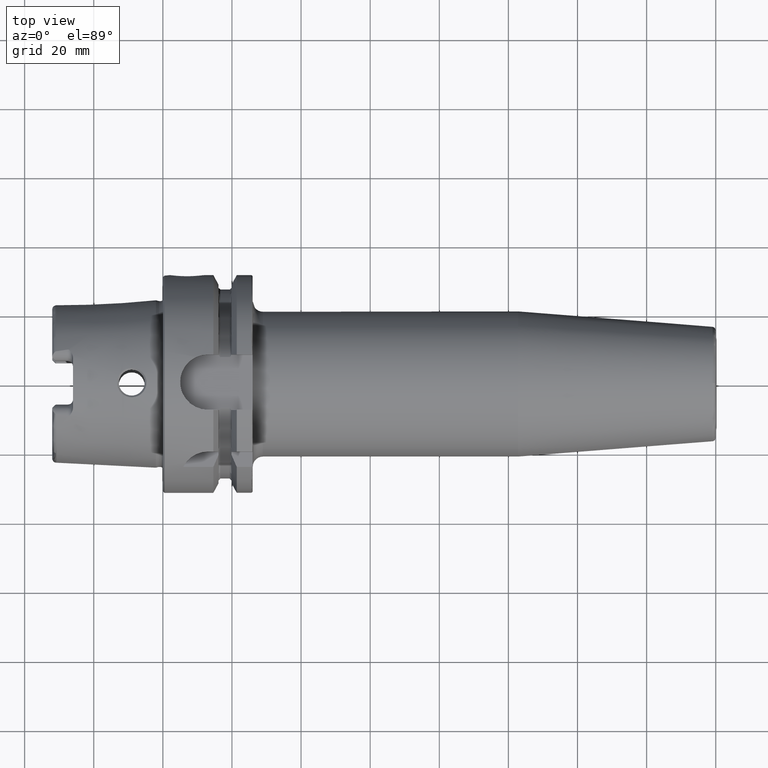
[diagram: clean part render]
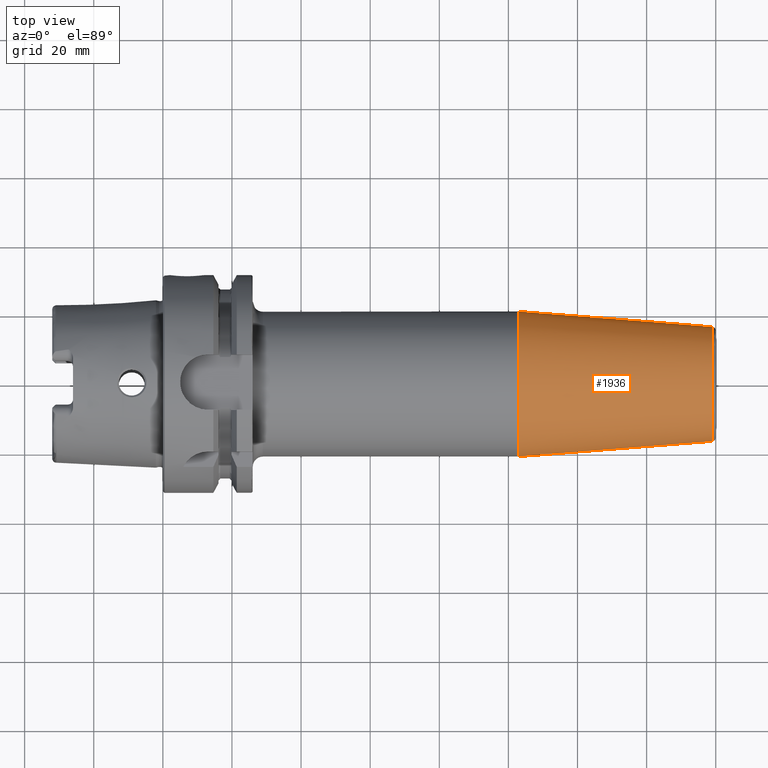
[diagram: same view with one face highlighted and labeled with its STEP entity id]
A machine part, top view. The second image highlights one B-rep face of the part: STEP entity #1936.
In plain terms, the highlighted conical surface has half-angle 4.5 deg.
Its self-contained STEP definition (entity closure, byte-faithful):
#211=FACE_OUTER_BOUND('',#328,.T.);
#328=EDGE_LOOP('',(#1313,#1314,#1315,#1316,#1317));
#452=LINE('',#2943,#558);
#558=VECTOR('',#2349,18.75);
#668=CIRCLE('',#2080,16.5725268420749);
#669=CIRCLE('',#2081,16.5725268420749);
#671=CIRCLE('',#2085,21.);
#791=VERTEX_POINT('',#2933);
#792=VERTEX_POINT('',#2935);
#794=VERTEX_POINT('',#2942);
#995=EDGE_CURVE('',#791,#792,#668,.T.);
#996=EDGE_CURVE('',#792,#791,#669,.T.);
#998=EDGE_CURVE('',#792,#794,#452,.T.);
#999=EDGE_CURVE('',#794,#794,#671,.T.);
#1313=ORIENTED_EDGE('',*,*,#996,.F.);
#1314=ORIENTED_EDGE('',*,*,#998,.T.);
#1315=ORIENTED_EDGE('',*,*,#999,.T.);
#1316=ORIENTED_EDGE('',*,*,#998,.F.);
#1317=ORIENTED_EDGE('',*,*,#995,.F.);
#1918=CONICAL_SURFACE('',#2084,18.75,0.0785398163397449);
#1936=ADVANCED_FACE('',(#211),#1918,.T.);
#2080=AXIS2_PLACEMENT_3D('',#2936,#2339,#2340);
#2081=AXIS2_PLACEMENT_3D('',#2937,#2341,#2342);
#2084=AXIS2_PLACEMENT_3D('',#2941,#2347,#2348);
#2085=AXIS2_PLACEMENT_3D('',#2944,#2350,#2351);
#2339=DIRECTION('center_axis',(1.,0.,0.));
#2340=DIRECTION('ref_axis',(0.,-1.,3.06161699786838E-17));
#2341=DIRECTION('center_axis',(1.,0.,0.));
#2342=DIRECTION('ref_axis',(0.,-1.,3.06161699786838E-17));
#2347=DIRECTION('center_axis',(-1.,0.,0.));
#2348=DIRECTION('ref_axis',(0.,1.,0.));
#2349=DIRECTION('',(-0.996917333733128,-0.078459095727845,-9.60846804471012E-18));
#2350=DIRECTION('center_axis',(1.,0.,0.));
#2351=DIRECTION('ref_axis',(0.,0.,-1.));
#2933=CARTESIAN_POINT('',(159.078459095728,-2.02954919509306E-15,16.5725268420749));
#2935=CARTESIAN_POINT('',(159.078459095728,-16.5725268420749,-2.02954919509306E-15));
#2936=CARTESIAN_POINT('Origin',(159.078459095728,0.,-2.53693649386633E-15));
#2937=CARTESIAN_POINT('Origin',(159.078459095728,0.,-2.53693649386633E-15));
#2941=CARTESIAN_POINT('Origin',(131.411039343607,0.,0.));
#2942=CARTESIAN_POINT('',(102.822078687214,-21.,-2.57175827820944E-15));
#2943=CARTESIAN_POINT('',(131.411039343607,-18.75,-2.29621274840129E-15));
#2944=CARTESIAN_POINT('Origin',(102.822078687214,0.,0.));